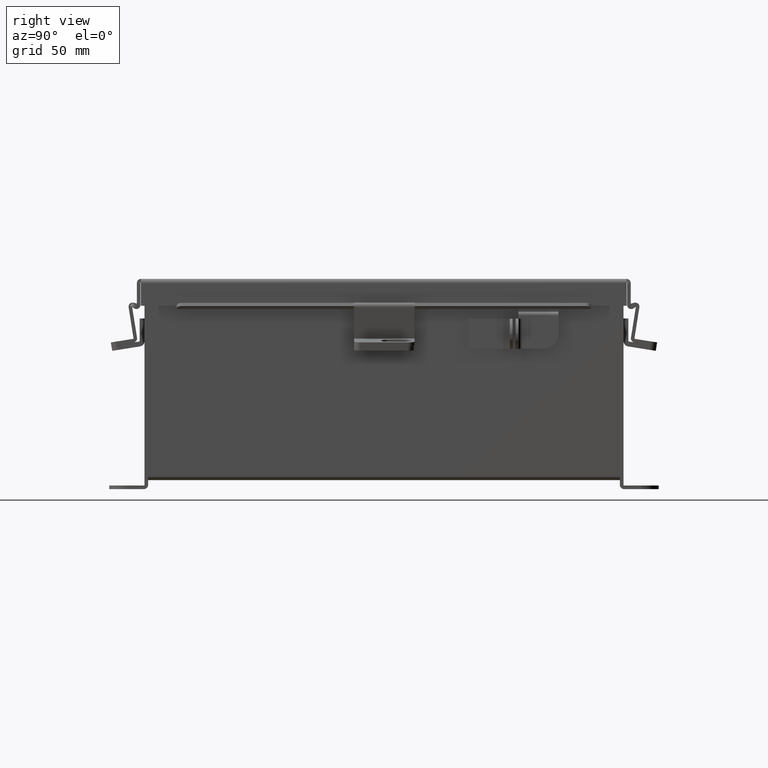
[diagram: clean part render]
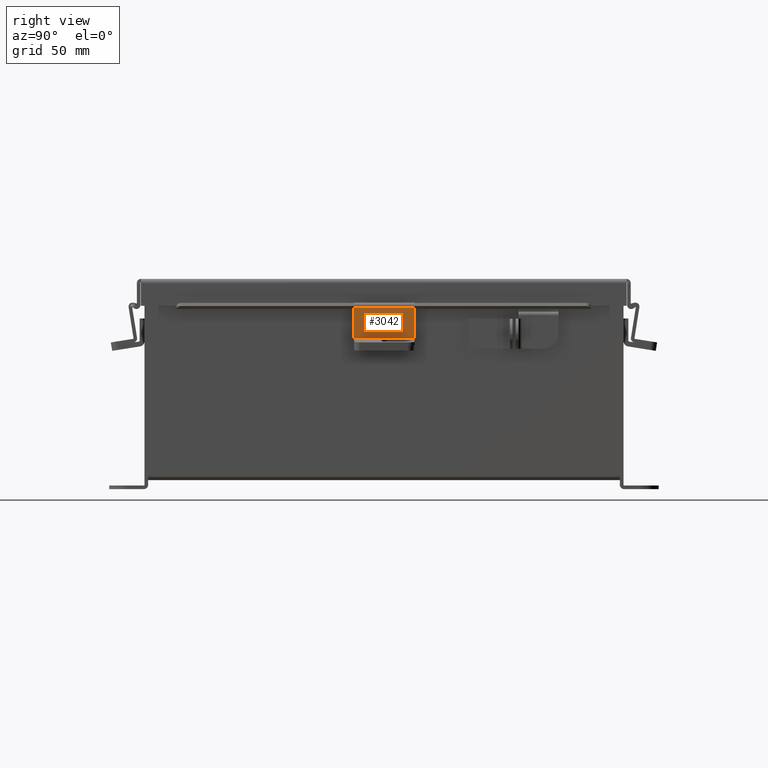
[diagram: same view with one face highlighted and labeled with its STEP entity id]
A machine part, right view. The second image highlights one B-rep face of the part: STEP entity #3042.
In plain terms, the highlighted planar face has unit normal (-0.9877, 0, 0.1564).
Its self-contained STEP definition (entity closure, byte-faithful):
#417 = DIRECTION ( 'NONE',  ( 0.0000000000000000000, 0.0000000000000000000, -1.000000000000000000 ) ) ;
#471 = DIRECTION ( 'NONE',  ( -1.000000000000000000, 0.0000000000000000000, -0.0000000000000000000 ) ) ;
#1234 = VERTEX_POINT ( 'NONE', #2371 ) ;
#1722 = LINE ( 'NONE', #12180, #15285 ) ;
#1758 = EDGE_CURVE ( 'NONE', #5036, #1234, #1722, .T. ) ;
#1988 = ORIENTED_EDGE ( 'NONE', *, *, #10914, .T. ) ;
#2371 = CARTESIAN_POINT ( 'NONE',  ( -0.6325000000000000600, -0.3344999999999998500, -3.734948428837859800E-017 ) ) ;
#3042 = ADVANCED_FACE ( 'NONE', ( #5015 ), #12546, .F. ) ;
#4086 = CARTESIAN_POINT ( 'NONE',  ( 0.6325000000000000600, 0.4175000000000001500, 0.0000000000000000000 ) ) ;
#4136 = DIRECTION ( 'NONE',  ( -1.000000000000000000, -0.0000000000000000000, -0.0000000000000000000 ) ) ;
#4175 = ORIENTED_EDGE ( 'NONE', *, *, #4314, .T. ) ;
#4314 = EDGE_CURVE ( 'NONE', #16292, #14382, #14794, .T. ) ;
#4655 = CARTESIAN_POINT ( 'NONE',  ( -0.6325000000000000600, 0.3243453803252444000, 0.0000000000000000000 ) ) ;
#4872 = ORIENTED_EDGE ( 'NONE', *, *, #10474, .T. ) ;
#5015 = FACE_OUTER_BOUND ( 'NONE', #9999, .T. ) ;
#5036 = VERTEX_POINT ( 'NONE', #6011 ) ;
#6011 = CARTESIAN_POINT ( 'NONE',  ( 0.6325000000000000600, -0.3344999999999998500, -3.734948428837859800E-017 ) ) ;
#6695 = DIRECTION ( 'NONE',  ( -0.0000000000000000000, -1.000000000000000000, -0.0000000000000000000 ) ) ;
#7730 = DIRECTION ( 'NONE',  ( 0.0000000000000000000, 1.000000000000000000, 0.0000000000000000000 ) ) ;
#8379 = CARTESIAN_POINT ( 'NONE',  ( 0.6324999999999998400, 0.3243453803252444000, -1.024442997624098700E-016 ) ) ;
#8681 = VECTOR ( 'NONE', #6695, 39.37007874015748100 ) ;
#9068 = VECTOR ( 'NONE', #7730, 39.37007874015748100 ) ;
#9290 = ORIENTED_EDGE ( 'NONE', *, *, #1758, .F. ) ;
#9466 = LINE ( 'NONE', #11514, #9068 ) ;
#9999 = EDGE_LOOP ( 'NONE', ( #4175, #4872, #9290, #1988 ) ) ;
#10474 = EDGE_CURVE ( 'NONE', #14382, #1234, #12085, .T. ) ;
#10914 = EDGE_CURVE ( 'NONE', #5036, #16292, #9466, .T. ) ;
#11427 = VECTOR ( 'NONE', #4136, 39.37007874015748100 ) ;
#11514 = CARTESIAN_POINT ( 'NONE',  ( 0.6325000000000000600, -0.4174999999999998700, 0.0000000000000000000 ) ) ;
#12085 = LINE ( 'NONE', #14301, #8681 ) ;
#12180 = CARTESIAN_POINT ( 'NONE',  ( 0.6325000000000000600, -0.3344999999999998500, -3.734948428837859800E-017 ) ) ;
#12546 = PLANE ( 'NONE',  #14055 ) ;
#13963 = DIRECTION ( 'NONE',  ( -1.000000000000000000, 0.0000000000000000000, 0.0000000000000000000 ) ) ;
#14055 = AXIS2_PLACEMENT_3D ( 'NONE', #4086, #417, #471 ) ;
#14301 = CARTESIAN_POINT ( 'NONE',  ( -0.6325000000000000600, -0.4174999999999998700, 0.0000000000000000000 ) ) ;
#14382 = VERTEX_POINT ( 'NONE', #4655 ) ;
#14794 = LINE ( 'NONE', #15851, #11427 ) ;
#15285 = VECTOR ( 'NONE', #13963, 39.37007874015748100 ) ;
#15851 = CARTESIAN_POINT ( 'NONE',  ( 0.6325000000000000600, 0.3243453803252444000, -1.024442997624098700E-016 ) ) ;
#16292 = VERTEX_POINT ( 'NONE', #8379 ) ;